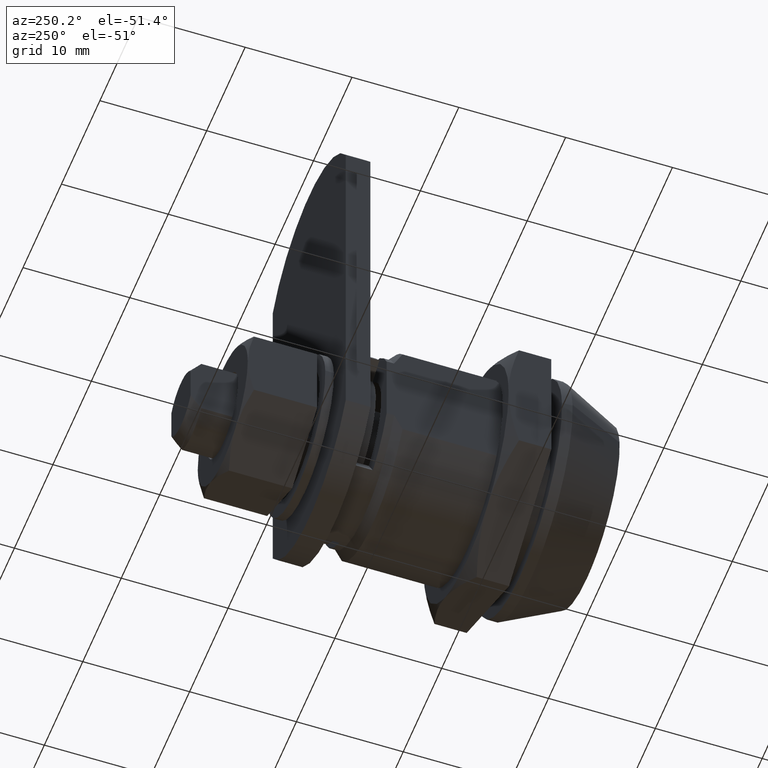
[diagram: clean part render]
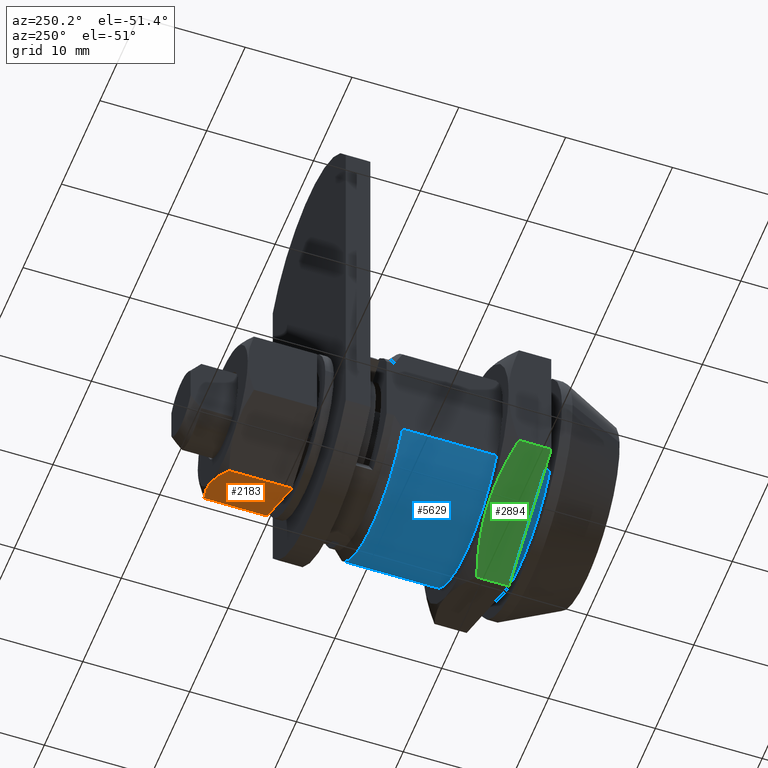
[diagram: same view with three faces highlighted in distinct colors, each labeled with its STEP entity id]
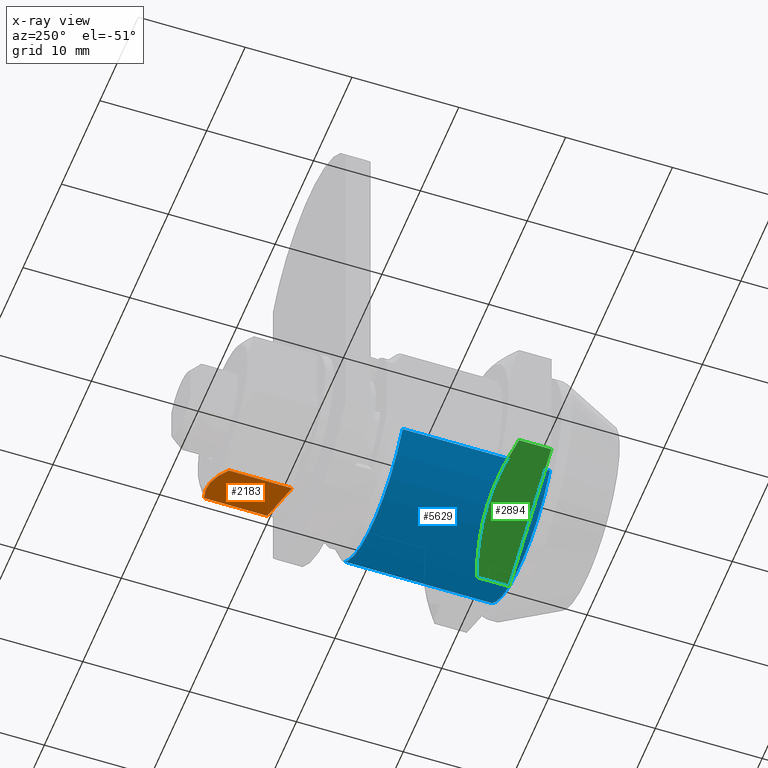
[diagram: x-ray of the same camera — body ghosted, the three highlighted faces saturated]
A machine part, auxiliary view with three faces highlighted in distinct colors.
The next image is the same camera in x-ray (body ghosted, the three faces saturated) — at least one of them is partly hidden behind the body in this view.
Their STEP definitions:

[orange] entity #2183 — the highlighted face is a freeform B-spline surface patch.
#2057=CARTESIAN_POINT('',(0.0,27.597000000000001,-7.505000000000091));
#2058=VERTEX_POINT('',#2057);
#2059=CARTESIAN_POINT('',(0.0,33.516577534791047,-7.505000000000100));
#2060=VERTEX_POINT('',#2059);
#2061=CARTESIAN_POINT('',(0.0,27.597000000000001,-7.505000000000091));
#2062=CARTESIAN_POINT('',(0.0,33.516577534791047,-7.505000000000100));
#2063=QUASI_UNIFORM_CURVE('',1,(#2061,#2062),.UNSPECIFIED.,.F.,.U.);
#2064=EDGE_CURVE('',#2058,#2060,#2063,.T.);
#2122=CARTESIAN_POINT('',(6.824674987401919,27.272325134632961,-3.564537657274038));
#2123=CARTESIAN_POINT('',(-0.324675161745334,27.272325134632961,-7.692462443389364));
#2124=CARTESIAN_POINT('',(6.824674987401919,34.421675155939681,-3.564537657274038));
#2125=CARTESIAN_POINT('',(-0.324675161745334,34.421675155939681,-7.692462443389364));
#2126=B_SPLINE_SURFACE_WITH_KNOTS('',1,1,((#2122,#2124),(#2123,#2125)),.UNSPECIFIED.,.F.,.F.,.U.,(2,2),(2,2),(0.0,8.255481245508168),(0.0,7.149350021306724),.UNSPECIFIED.);
#2127=CARTESIAN_POINT('',(6.500000000000170,27.597000000000001,-3.752000000000000));
#2128=VERTEX_POINT('',#2127);
#2129=CARTESIAN_POINT('',(6.500000000000170,33.516482152179812,-3.752000000000000));
#2130=VERTEX_POINT('',#2129);
#2131=CARTESIAN_POINT('',(6.500000000000170,27.597000000000001,-3.752000000000000));
#2132=CARTESIAN_POINT('',(6.500000000000170,33.516482152179812,-3.752000000000000));
#2133=QUASI_UNIFORM_CURVE('',1,(#2131,#2132),.UNSPECIFIED.,.F.,.U.);
#2134=EDGE_CURVE('',#2128,#2130,#2133,.T.);
#2135=ORIENTED_EDGE('',*,*,#2134,.F.);
#2136=CARTESIAN_POINT('',(6.500000000000170,27.597000000000001,-3.752000000000000));
#2137=CARTESIAN_POINT('',(0.0,27.597000000000001,-7.505000000000091));
#2138=QUASI_UNIFORM_CURVE('',1,(#2136,#2137),.UNSPECIFIED.,.F.,.U.);
#2139=EDGE_CURVE('',#2128,#2058,#2138,.T.);
#2140=ORIENTED_EDGE('',*,*,#2139,.T.);
#2141=ORIENTED_EDGE('',*,*,#2064,.T.);
#2142=CARTESIAN_POINT('',(3.174919238120450,34.097000000000001,-5.671850476820700));
#2143=VERTEX_POINT('',#2142);
#2144=CARTESIAN_POINT('',(3.174919238120450,34.097000000000001,-5.671850476820700));
#2145=CARTESIAN_POINT('',(2.926976639779390,34.094789703316849,-5.815008718601316));
#2146=CARTESIAN_POINT('',(2.678340968150614,34.081622648781227,-5.958567130235594));
#2147=CARTESIAN_POINT('',(2.360117792651044,34.050997662591378,-6.142304296027884));
#2148=CARTESIAN_POINT('',(2.291163102613191,34.043543850351483,-6.182117673214355));
#2149=CARTESIAN_POINT('',(2.153150987178975,34.027012088185216,-6.261803745402760));
#2150=CARTESIAN_POINT('',(2.084033518854648,34.017924123781818,-6.301711108267559));
#2151=CARTESIAN_POINT('',(1.877460694055511,33.988406646301371,-6.420983079263123));
#2152=CARTESIAN_POINT('',(1.740525783520103,33.965697814337958,-6.500047189915335));
#2153=CARTESIAN_POINT('',(1.059433552117755,33.838240813233000,-6.893299365985031));
#2154=CARTESIAN_POINT('',(0.525968367172962,33.691967058108013,-7.201313956615465));
#2155=CARTESIAN_POINT('',(0.0,33.516577534791047,-7.505000000000100));
#2156=B_SPLINE_CURVE_WITH_KNOTS('',3,(#2144,#2145,#2146,#2147,#2148,#2149,#2150,#2151,#2152,#2153,#2154,#2155),.UNSPECIFIED.,.F.,.U.,(4,2,2,2,2,4),(0.511923546036320,0.624999999999998,0.656249999999998,0.687499999999998,0.749999999999999,1.0),.UNSPECIFIED.);
#2157=EDGE_CURVE('',#2143,#2060,#2156,.T.);
#2158=ORIENTED_EDGE('',*,*,#2157,.F.);
#2159=CARTESIAN_POINT('',(3.324794731926245,34.097000000000001,-5.585314672474060));
#2160=VERTEX_POINT('',#2159);
#2161=CARTESIAN_POINT('',(3.324794731926245,34.097000000000001,-5.585314672474060));
#2162=CARTESIAN_POINT('',(3.174919238120450,34.097000000000001,-5.671850476820700));
#2163=QUASI_UNIFORM_CURVE('',1,(#2161,#2162),.UNSPECIFIED.,.F.,.U.);
#2164=EDGE_CURVE('',#2160,#2143,#2163,.T.);
#2165=ORIENTED_EDGE('',*,*,#2164,.F.);
#2166=CARTESIAN_POINT('',(6.500000000000170,33.516482152179812,-3.752000000000000));
#2167=CARTESIAN_POINT('',(6.367444512010100,33.560687036339999,-3.828535499450267));
#2168=CARTESIAN_POINT('',(6.234287855057387,33.603066388115593,-3.905418104610810));
#2169=CARTESIAN_POINT('',(5.966621553136552,33.683716557142240,-4.059964509396793));
#2170=CARTESIAN_POINT('',(5.831951723427589,33.722024797912887,-4.137720797227215));
#2171=CARTESIAN_POINT('',(5.427849949665321,33.829484979148063,-4.371042944447180));
#2172=CARTESIAN_POINT('',(5.157829177004889,33.891330033811997,-4.526948784415580));
#2173=CARTESIAN_POINT('',(4.616343456141653,33.992189252539028,-4.839594309092459));
#2174=CARTESIAN_POINT('',(4.344877136985521,34.031181743277394,-4.996334785368299));
#2175=CARTESIAN_POINT('',(3.824017989914982,34.081422165390208,-5.297070843669178));
#2176=CARTESIAN_POINT('',(3.574758174838846,34.094772889306128,-5.440989626127753));
#2177=CARTESIAN_POINT('',(3.324794731926245,34.097000000000001,-5.585314672474060));
#2178=B_SPLINE_CURVE_WITH_KNOTS('',3,(#2166,#2167,#2168,#2169,#2170,#2171,#2172,#2173,#2174,#2175,#2176,#2177),.UNSPECIFIED.,.F.,.U.,(4,2,2,2,2,4),(0.0,0.062500000000000,0.125000000000000,0.250000000000000,0.374999999999999,0.489126675251836),.UNSPECIFIED.);
#2179=EDGE_CURVE('',#2130,#2160,#2178,.T.);
#2180=ORIENTED_EDGE('',*,*,#2179,.F.);
#2181=EDGE_LOOP('',(#2135,#2140,#2141,#2158,#2165,#2180));
#2182=FACE_OUTER_BOUND('',#2181,.T.);
#2183=ADVANCED_FACE('',(#2182),#2126,.T.);

[blue] entity #5629 — the highlighted face is a freeform B-spline surface patch.
#5297=CARTESIAN_POINT('',(7.900000000000091,6.300000000000000,-5.276362383308980));
#5298=VERTEX_POINT('',#5297);
#5304=CARTESIAN_POINT('',(7.900000000000091,20.100000000000001,-5.276362383309020));
#5305=VERTEX_POINT('',#5304);
#5306=CARTESIAN_POINT('',(7.900000000000091,20.100000000000001,-5.276362383309020));
#5307=CARTESIAN_POINT('',(7.900000000000091,6.300000000000000,-5.276362383308980));
#5308=QUASI_UNIFORM_CURVE('',1,(#5306,#5307),.UNSPECIFIED.,.F.,.U.);
#5309=EDGE_CURVE('',#5305,#5298,#5308,.T.);
#5343=CARTESIAN_POINT('',(-7.900000000000000,20.100000000000001,-5.276362383309070));
#5344=VERTEX_POINT('',#5343);
#5354=CARTESIAN_POINT('',(-7.900000000000000,6.300000000000000,-5.276362383309090));
#5355=VERTEX_POINT('',#5354);
#5356=CARTESIAN_POINT('',(-7.900000000000000,6.300000000000000,-5.276362383309090));
#5357=CARTESIAN_POINT('',(-7.900000000000000,20.100000000000001,-5.276362383309070));
#5358=QUASI_UNIFORM_CURVE('',1,(#5356,#5357),.UNSPECIFIED.,.F.,.U.);
#5359=EDGE_CURVE('',#5355,#5344,#5358,.T.);
#5405=CARTESIAN_POINT('',(-7.900000000000000,6.300000000000000,-5.276362383309090));
#5406=CARTESIAN_POINT('',(-5.079057893489020,6.300000000000001,-9.500000000000000));
#5407=CARTESIAN_POINT('',(-3.552714E-015,6.300000000000000,-9.500000000000000));
#5408=CARTESIAN_POINT('',(5.079057893489104,6.300000000000001,-9.500000000000000));
#5409=CARTESIAN_POINT('',(7.900000000000091,6.300000000000000,-5.276362383308980));
#5417=(BOUNDED_CURVE()B_SPLINE_CURVE(2,(#5405,#5406,#5407,#5408,#5409),.UNSPECIFIED.,.F.,.U.)B_SPLINE_CURVE_WITH_KNOTS((3,2,3),(0.0,0.500000000000000,1.0),.UNSPECIFIED.)CURVE()GEOMETRIC_REPRESENTATION_ITEM()RATIONAL_B_SPLINE_CURVE((1.0,0.881874868295984,1.0,0.881874868295984,1.0))REPRESENTATION_ITEM(''));
#5418=EDGE_CURVE('',#5355,#5298,#5417,.T.);
#5515=CARTESIAN_POINT('',(-7.900000000000000,20.100000000000001,-5.276362383309070));
#5516=CARTESIAN_POINT('',(-5.079057893489033,20.100000000000005,-9.500000000000000));
#5517=CARTESIAN_POINT('',(-3.552714E-015,20.100000000000001,-9.500000000000000));
#5518=CARTESIAN_POINT('',(5.079057893489082,20.100000000000005,-9.500000000000000));
#5519=CARTESIAN_POINT('',(7.900000000000091,20.100000000000001,-5.276362383309027));
#5527=(BOUNDED_CURVE()B_SPLINE_CURVE(2,(#5515,#5516,#5517,#5518,#5519),.UNSPECIFIED.,.F.,.U.)B_SPLINE_CURVE_WITH_KNOTS((3,2,3),(0.0,0.500000000000000,1.0),.UNSPECIFIED.)CURVE()GEOMETRIC_REPRESENTATION_ITEM()RATIONAL_B_SPLINE_CURVE((1.0,0.881874868295983,1.0,0.881874868295983,1.0))REPRESENTATION_ITEM(''));
#5528=EDGE_CURVE('',#5344,#5305,#5527,.T.);
#5609=CARTESIAN_POINT('',(8.077362036905440,20.445000000000000,-5.000622213760876));
#5610=CARTESIAN_POINT('',(8.077362036905440,5.946374999999998,-5.000622213760876));
#5611=CARTESIAN_POINT('',(-0.412009869079183,20.445000000000011,-18.713261845259908));
#5612=CARTESIAN_POINT('',(-0.412009869079183,5.946374999999998,-18.713261845259908));
#5613=CARTESIAN_POINT('',(-8.289625557818606,20.445000000000000,-4.640270262728302));
#5614=CARTESIAN_POINT('',(-8.289625557818606,5.946374999999998,-4.640270262728302));
#5622=(BOUNDED_SURFACE()B_SPLINE_SURFACE(1,2,((#5609,#5611,#5613),(#5610,#5612,#5614)),.UNSPECIFIED.,.F.,.F.,.U.)B_SPLINE_SURFACE_WITH_KNOTS((2,2),(3,3),(0.0,14.498625000000009),(0.0,21.718789319878439),.UNSPECIFIED.)GEOMETRIC_REPRESENTATION_ITEM()RATIONAL_B_SPLINE_SURFACE(((1.0,0.507538362960704,1.0),(1.0,0.507538362960704,1.0)))REPRESENTATION_ITEM('')SURFACE());
#5623=ORIENTED_EDGE('',*,*,#5528,.T.);
#5624=ORIENTED_EDGE('',*,*,#5309,.T.);
#5625=ORIENTED_EDGE('',*,*,#5418,.F.);
#5626=ORIENTED_EDGE('',*,*,#5359,.T.);
#5627=EDGE_LOOP('',(#5623,#5624,#5625,#5626));
#5628=FACE_OUTER_BOUND('',#5627,.T.);
#5629=ADVANCED_FACE('',(#5628),#5622,.T.);

[green] entity #2894 — the highlighted face is a freeform B-spline surface patch.
#2774=CARTESIAN_POINT('',(-11.0,10.318415726925259,-6.350000000000000));
#2775=VERTEX_POINT('',#2774);
#2776=CARTESIAN_POINT('',(-11.0,7.300000000000000,-6.350000000000000));
#2777=VERTEX_POINT('',#2776);
#2778=CARTESIAN_POINT('',(-11.0,10.318415726925259,-6.350000000000000));
#2779=CARTESIAN_POINT('',(-11.0,7.300000000000000,-6.350000000000000));
#2780=QUASI_UNIFORM_CURVE('',1,(#2778,#2779),.UNSPECIFIED.,.F.,.U.);
#2781=EDGE_CURVE('',#2775,#2777,#2780,.T.);
#2833=CARTESIAN_POINT('',(-11.549450081940000,7.100200195498472,-6.032767502690838));
#2834=CARTESIAN_POINT('',(0.549450278635321,7.100200195498472,-13.018232610873911));
#2835=CARTESIAN_POINT('',(-11.549450081940000,11.499800090603699,-6.032767502690839));
#2836=CARTESIAN_POINT('',(0.549450278635321,11.499800090603699,-13.018232610873911));
#2837=B_SPLINE_SURFACE_WITH_KNOTS('',1,1,((#2833,#2835),(#2834,#2836)),.UNSPECIFIED.,.F.,.F.,.U.,(2,2),(2,2),(0.0,13.970687624908550),(0.0,4.399599895105231),.UNSPECIFIED.);
#2838=CARTESIAN_POINT('',(-3.552714E-015,10.318576968272660,-12.701000000000001));
#2839=VERTEX_POINT('',#2838);
#2840=CARTESIAN_POINT('',(-3.552714E-015,7.300000000000080,-12.701000000000001));
#2841=VERTEX_POINT('',#2840);
#2842=CARTESIAN_POINT('',(-3.552714E-015,10.318576968272660,-12.701000000000001));
#2843=CARTESIAN_POINT('',(-3.552714E-015,7.300000000000080,-12.701000000000001));
#2844=QUASI_UNIFORM_CURVE('',1,(#2842,#2843),.UNSPECIFIED.,.F.,.U.);
#2845=EDGE_CURVE('',#2839,#2841,#2844,.T.);
#2846=ORIENTED_EDGE('',*,*,#2845,.T.);
#2847=CARTESIAN_POINT('',(-3.552714E-015,7.300000000000080,-12.701000000000001));
#2848=CARTESIAN_POINT('',(-11.0,7.300000000000000,-6.350000000000000));
#2849=QUASI_UNIFORM_CURVE('',1,(#2847,#2848),.UNSPECIFIED.,.F.,.U.);
#2850=EDGE_CURVE('',#2841,#2777,#2849,.T.);
#2851=ORIENTED_EDGE('',*,*,#2850,.T.);
#2852=ORIENTED_EDGE('',*,*,#2781,.F.);
#2853=CARTESIAN_POINT('',(-5.605291124326450,11.299999999999880,-9.464708733582071));
#2854=VERTEX_POINT('',#2853);
#2855=CARTESIAN_POINT('',(-5.605291124326450,11.299999999999880,-9.464708733582071));
#2856=CARTESIAN_POINT('',(-6.032052299712340,11.296836531988880,-9.218312349502456));
#2857=CARTESIAN_POINT('',(-6.460014260272334,11.274504280845139,-8.971222675728226));
#2858=CARTESIAN_POINT('',(-7.005747031971572,11.222027330167730,-8.656136418177145));
#2859=CARTESIAN_POINT('',(-7.122418861194867,11.209426273300499,-8.588774346595583));
#2860=CARTESIAN_POINT('',(-7.355934439601906,11.181479708261261,-8.453950943098938));
#2861=CARTESIAN_POINT('',(-7.472895807474234,11.166115380386151,-8.386421702430111));
#2862=CARTESIAN_POINT('',(-7.822518215679252,11.116203611072530,-8.184562437474648));
#2863=CARTESIAN_POINT('',(-8.054277507735272,11.077804986739419,-8.050753049852123));
#2864=CARTESIAN_POINT('',(-9.207003620739483,10.862288594646801,-7.385210909516689));
#2865=CARTESIAN_POINT('',(-10.109852551156520,10.614961987234169,-6.863938767964087));
#2866=CARTESIAN_POINT('',(-11.0,10.318415726925259,-6.350000000000000));
#2867=B_SPLINE_CURVE_WITH_KNOTS('',3,(#2855,#2856,#2857,#2858,#2859,#2860,#2861,#2862,#2863,#2864,#2865,#2866),.UNSPECIFIED.,.F.,.U.,(4,2,2,2,2,4),(0.509968842914647,0.625000000000002,0.656250000000001,0.687500000000001,0.750000000000001,1.0),.UNSPECIFIED.);
#2868=EDGE_CURVE('',#2854,#2775,#2867,.T.);
#2869=ORIENTED_EDGE('',*,*,#2868,.F.);
#2870=CARTESIAN_POINT('',(-5.394224858549390,11.299999999999880,-9.586570720304799));
#2871=VERTEX_POINT('',#2870);
#2872=CARTESIAN_POINT('',(-5.394224858549390,11.299999999999880,-9.586570720304799));
#2873=CARTESIAN_POINT('',(-5.605291124326450,11.299999999999880,-9.464708733582071));
#2874=QUASI_UNIFORM_CURVE('',1,(#2872,#2873),.UNSPECIFIED.,.F.,.U.);
#2875=EDGE_CURVE('',#2871,#2854,#2874,.T.);
#2876=ORIENTED_EDGE('',*,*,#2875,.F.);
#2877=CARTESIAN_POINT('',(-3.552714E-015,10.318576968272660,-12.701000000000001));
#2878=CARTESIAN_POINT('',(-0.224331655061111,10.393306504472431,-12.571479059882449));
#2879=CARTESIAN_POINT('',(-0.449678700634288,10.464948631903971,-12.441371870206520));
#2880=CARTESIAN_POINT('',(-0.902657875597495,10.601284833059180,-12.179838166552759));
#2881=CARTESIAN_POINT('',(-1.130569404043037,10.666044710184330,-12.048250337720249));
#2882=CARTESIAN_POINT('',(-1.814484288664193,10.847708664954091,-11.653382752972160));
#2883=CARTESIAN_POINT('',(-2.271465289846581,10.952251888128609,-11.389538540380400));
#2884=CARTESIAN_POINT('',(-3.187845700784490,11.122731972747481,-10.860453814028890));
#2885=CARTESIAN_POINT('',(-3.647247404954777,11.188632207210150,-10.595211975557470));
#2886=CARTESIAN_POINT('',(-4.535558848137876,11.274192845618920,-10.082333250497850));
#2887=CARTESIAN_POINT('',(-4.964283060722583,11.296814908100959,-9.834803480122803));
#2888=CARTESIAN_POINT('',(-5.394224858549390,11.299999999999880,-9.586570720304799));
#2889=B_SPLINE_CURVE_WITH_KNOTS('',3,(#2877,#2878,#2879,#2880,#2881,#2882,#2883,#2884,#2885,#2886,#2887,#2888),.UNSPECIFIED.,.F.,.U.,(4,2,2,2,2,4),(0.0,0.062500000000000,0.125000000000000,0.250000000000001,0.375000000000001,0.490996115643444),.UNSPECIFIED.);
#2890=EDGE_CURVE('',#2839,#2871,#2889,.T.);
#2891=ORIENTED_EDGE('',*,*,#2890,.F.);
#2892=EDGE_LOOP('',(#2846,#2851,#2852,#2869,#2876,#2891));
#2893=FACE_OUTER_BOUND('',#2892,.T.);
#2894=ADVANCED_FACE('',(#2893),#2837,.F.);